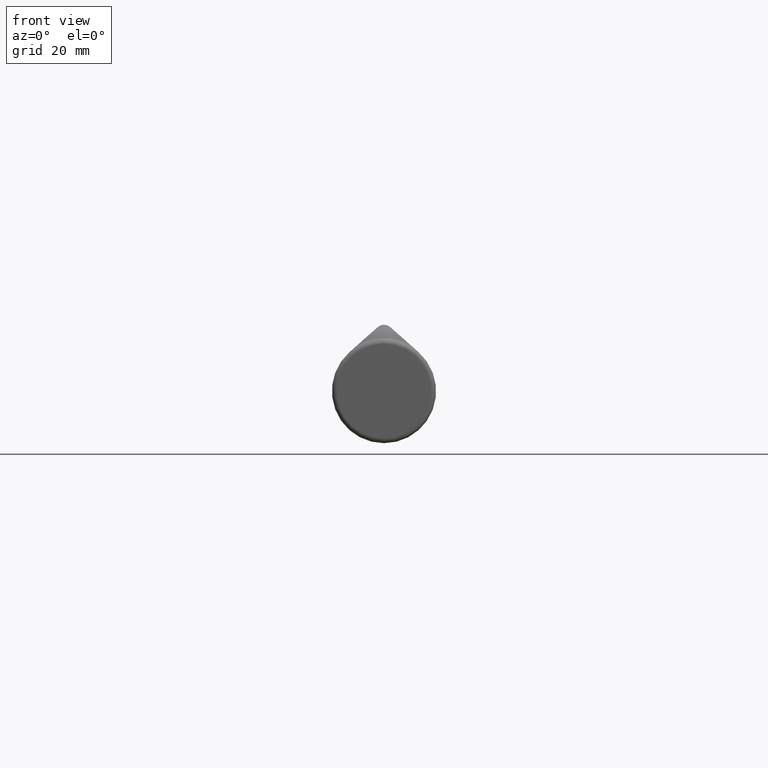
[diagram: clean part render]
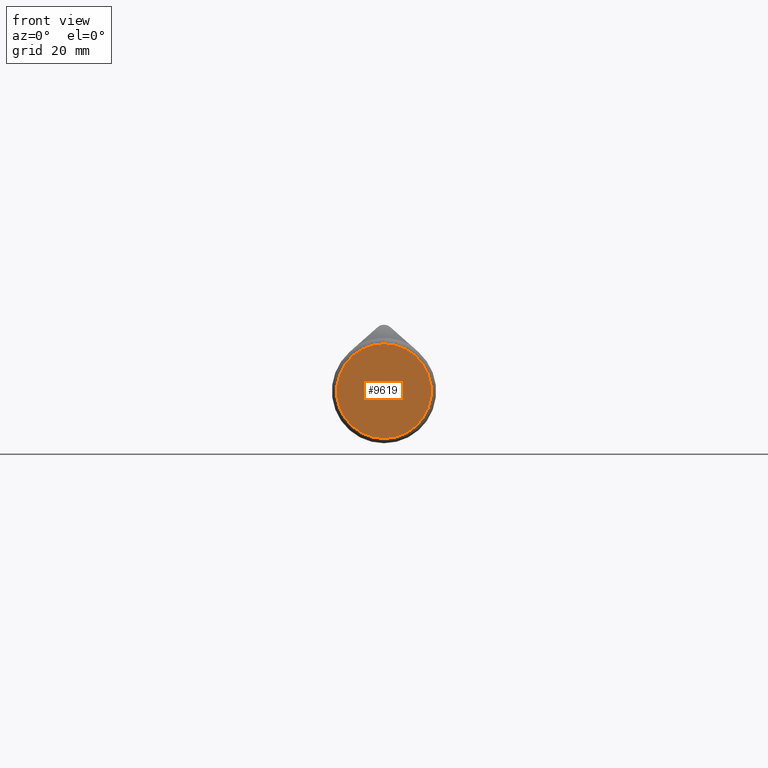
[diagram: same view with one face highlighted and labeled with its STEP entity id]
A machine part, front view. The second image highlights one B-rep face of the part: STEP entity #9619.
In plain terms, the highlighted planar face has unit normal (0, 1, 0).
Its self-contained STEP definition (entity closure, byte-faithful):
#1 = EDGE_LOOP ( 'NONE', ( #2398 ) ) ;
#684 = CARTESIAN_POINT ( 'NONE',  ( 0.02500000000000122610, -36.00000000000000000, 12.00000000000000355 ) ) ;
#2375 = DIRECTION ( 'NONE',  ( 0.000000000000000000, 1.000000000000000000, 0.000000000000000000 ) ) ;
#2398 = ORIENTED_EDGE ( 'NONE', *, *, #9360, .T. ) ;
#2633 = AXIS2_PLACEMENT_3D ( 'NONE', #4170, #4207, #6050 ) ;
#4170 = CARTESIAN_POINT ( 'NONE',  ( 0.000000000000000000, -36.00000000000000000, 0.000000000000000000 ) ) ;
#4207 = DIRECTION ( 'NONE',  ( -0.000000000000000000, -1.000000000000000000, -0.000000000000000000 ) ) ;
#5034 = DIRECTION ( 'NONE',  ( 0.000000000000000000, -0.000000000000000000, 1.000000000000000000 ) ) ;
#5589 = FACE_OUTER_BOUND ( 'NONE', #1, .T. ) ;
#6050 = DIRECTION ( 'NONE',  ( 0.000000000000000000, 0.000000000000000000, 1.000000000000000000 ) ) ;
#7600 = PLANE ( 'NONE',  #9197 ) ;
#9197 = AXIS2_PLACEMENT_3D ( 'NONE', #684, #2375, #5034 ) ;
#9256 = CARTESIAN_POINT ( 'NONE',  ( 0.000000000000000000, -36.00000000000000000, 9.999999999999998224 ) ) ;
#9360 = EDGE_CURVE ( 'NONE', #10656, #10656, #11113, .T. ) ;
#9619 = ADVANCED_FACE ( 'NONE', ( #5589 ), #7600, .F. ) ;
#10656 = VERTEX_POINT ( 'NONE', #9256 ) ;
#11113 = CIRCLE ( 'NONE', #2633, 9.999999999999998224 ) ;